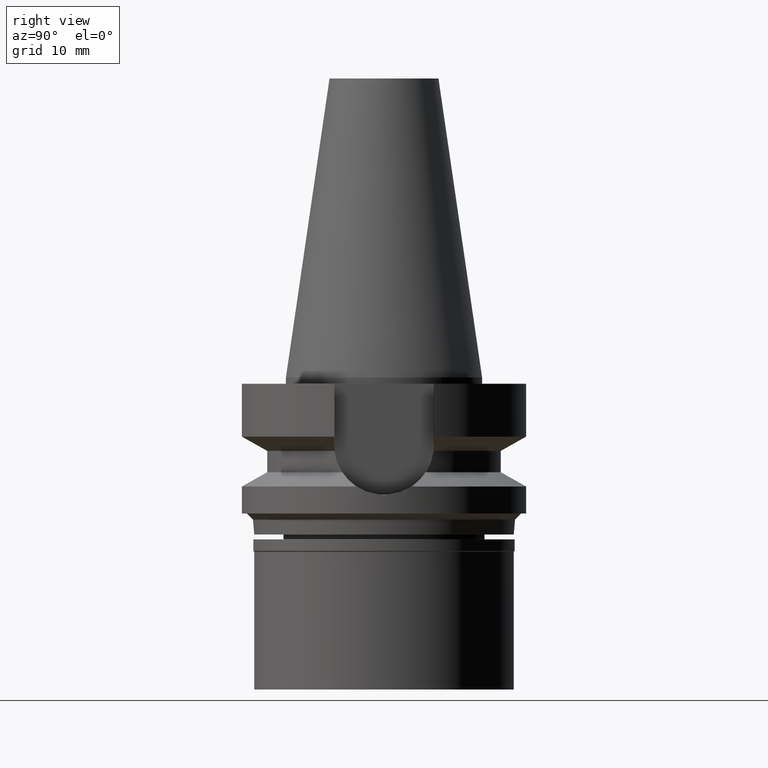
[diagram: clean part render]
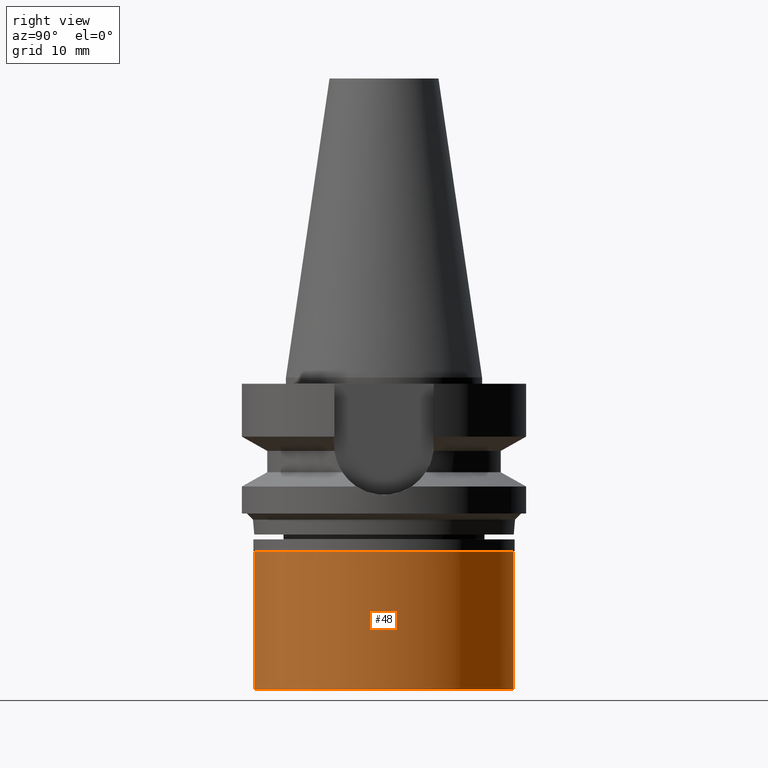
[diagram: same view with one face highlighted and labeled with its STEP entity id]
A machine part, right view. The second image highlights one B-rep face of the part: STEP entity #48.
In plain terms, the highlighted cylindrical surface (partial cylindrical patch) has radius 21 mm, axis along (0, 0, -1).
Its self-contained STEP definition (entity closure, byte-faithful):
#48 = ADVANCED_FACE ( 'NONE', ( #414 ), #911, .T. ) ;
#84 = CARTESIAN_POINT ( 'NONE',  ( 0.0000000000000000000, 0.0000000000000000000, -2.000000000000000000 ) ) ;
#133 = CIRCLE ( 'NONE', #1895, 21.00000000000000000 ) ;
#218 = VERTEX_POINT ( 'NONE', #1713 ) ;
#232 = VECTOR ( 'NONE', #1472, 1000.000000000000000 ) ;
#341 = DIRECTION ( 'NONE',  ( 0.0000000000000000000, 1.000000000000000000, 0.0000000000000000000 ) ) ;
#414 = FACE_OUTER_BOUND ( 'NONE', #767, .T. ) ;
#419 = EDGE_CURVE ( 'NONE', #624, #218, #847, .T. ) ;
#461 = LINE ( 'NONE', #2164, #3030 ) ;
#624 = VERTEX_POINT ( 'NONE', #1360 ) ;
#678 = DIRECTION ( 'NONE',  ( 0.0000000000000000000, -1.000000000000000000, 0.0000000000000000000 ) ) ;
#767 = EDGE_LOOP ( 'NONE', ( #1569, #2084, #1499, #1051 ) ) ;
#824 = VERTEX_POINT ( 'NONE', #1651 ) ;
#847 = CIRCLE ( 'NONE', #2599, 21.00000000000000000 ) ;
#911 = CYLINDRICAL_SURFACE ( 'NONE', #2681, 21.00000000000000000 ) ;
#1051 = ORIENTED_EDGE ( 'NONE', *, *, #1347, .F. ) ;
#1065 = LINE ( 'NONE', #2965, #232 ) ;
#1067 = CARTESIAN_POINT ( 'NONE',  ( 0.0000000000000000000, -21.00000000000000000, -24.29999999999999716 ) ) ;
#1347 = EDGE_CURVE ( 'NONE', #624, #824, #1065, .T. ) ;
#1360 = CARTESIAN_POINT ( 'NONE',  ( 0.0000000000000000000, 21.00000000000000000, -2.000000000000000000 ) ) ;
#1443 = CARTESIAN_POINT ( 'NONE',  ( 0.0000000000000000000, 0.0000000000000000000, -24.29999999999999716 ) ) ;
#1472 = DIRECTION ( 'NONE',  ( 0.0000000000000000000, 0.0000000000000000000, -1.000000000000000000 ) ) ;
#1499 = ORIENTED_EDGE ( 'NONE', *, *, #1717, .T. ) ;
#1569 = ORIENTED_EDGE ( 'NONE', *, *, #419, .T. ) ;
#1651 = CARTESIAN_POINT ( 'NONE',  ( 0.0000000000000000000, 21.00000000000000000, -24.29999999999999716 ) ) ;
#1686 = DIRECTION ( 'NONE',  ( 0.0000000000000000000, 0.0000000000000000000, 1.000000000000000000 ) ) ;
#1713 = CARTESIAN_POINT ( 'NONE',  ( 0.0000000000000000000, -21.00000000000000000, -2.000000000000000000 ) ) ;
#1717 = EDGE_CURVE ( 'NONE', #2806, #824, #133, .T. ) ;
#1884 = DIRECTION ( 'NONE',  ( 0.0000000000000000000, 0.0000000000000000000, -1.000000000000000000 ) ) ;
#1895 = AXIS2_PLACEMENT_3D ( 'NONE', #1443, #1686, #2379 ) ;
#2084 = ORIENTED_EDGE ( 'NONE', *, *, #2628, .T. ) ;
#2090 = CARTESIAN_POINT ( 'NONE',  ( 0.0000000000000000000, 0.0000000000000000000, 0.0000000000000000000 ) ) ;
#2164 = CARTESIAN_POINT ( 'NONE',  ( 0.0000000000000000000, -21.00000000000000000, -2.000000000000000000 ) ) ;
#2379 = DIRECTION ( 'NONE',  ( 0.0000000000000000000, -1.000000000000000000, 0.0000000000000000000 ) ) ;
#2496 = DIRECTION ( 'NONE',  ( 0.0000000000000000000, 0.0000000000000000000, -1.000000000000000000 ) ) ;
#2599 = AXIS2_PLACEMENT_3D ( 'NONE', #84, #2496, #341 ) ;
#2628 = EDGE_CURVE ( 'NONE', #218, #2806, #461, .T. ) ;
#2645 = DIRECTION ( 'NONE',  ( 0.0000000000000000000, 0.0000000000000000000, -1.000000000000000000 ) ) ;
#2681 = AXIS2_PLACEMENT_3D ( 'NONE', #2090, #1884, #678 ) ;
#2806 = VERTEX_POINT ( 'NONE', #1067 ) ;
#2965 = CARTESIAN_POINT ( 'NONE',  ( 0.0000000000000000000, 21.00000000000000000, -2.000000000000000000 ) ) ;
#3030 = VECTOR ( 'NONE', #2645, 1000.000000000000000 ) ;